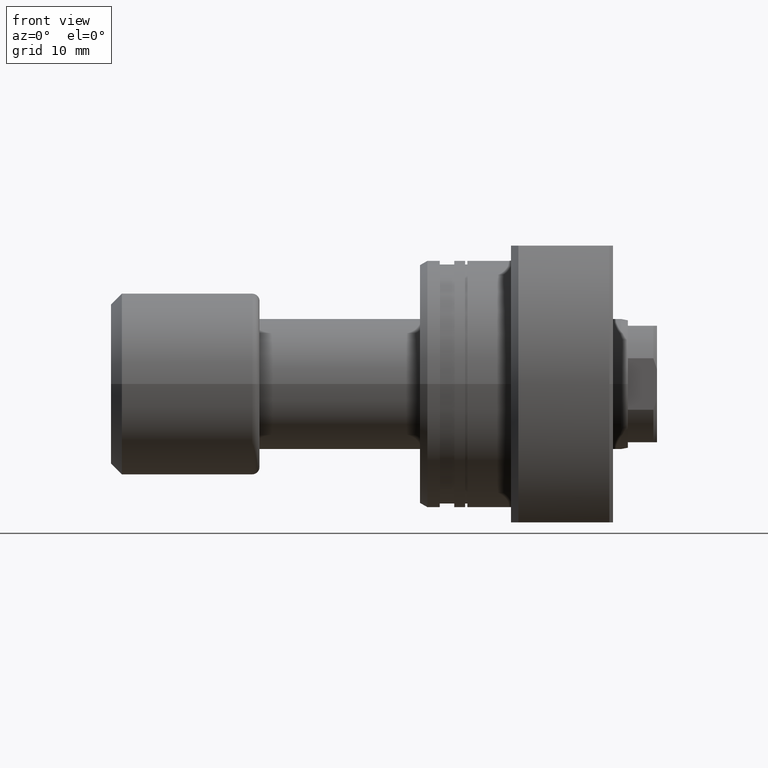
[diagram: clean part render]
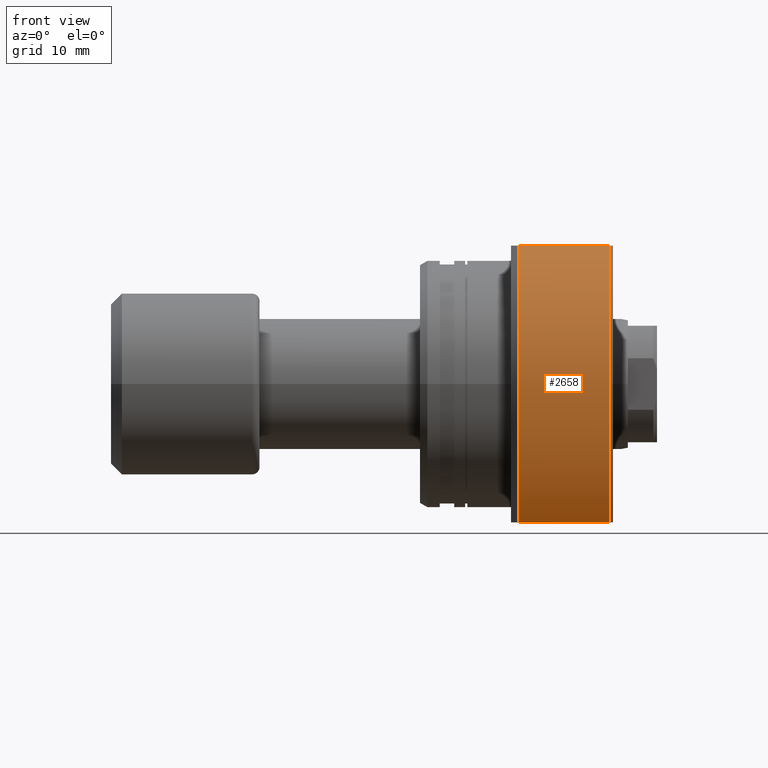
[diagram: same view with one face highlighted and labeled with its STEP entity id]
A machine part, front view. The second image highlights one B-rep face of the part: STEP entity #2658.
In plain terms, the highlighted cylindrical surface (partial cylindrical patch) has radius 27.5 mm, axis along (1, 0, 0).
Its self-contained STEP definition (entity closure, byte-faithful):
#4 = VERTEX_POINT ( 'NONE', #5 ) ;
#5 = CARTESIAN_POINT ( 'NONE',  ( 26.00000000000007461, -19.88089535207091885, 19.00000000000001421 ) ) ;
#87 = DIRECTION ( 'NONE',  ( 1.000000000000000000, 9.242617352055502386E-18, -0.000000000000000000 ) ) ;
#132 = CARTESIAN_POINT ( 'NONE',  ( 26.00000000000007461, -19.88089535207092240, -19.00000000000001066 ) ) ;
#270 = ORIENTED_EDGE ( 'NONE', *, *, #2623, .F. ) ;
#332 = CIRCLE ( 'NONE', #2168, 27.49999999999991473 ) ;
#341 = ORIENTED_EDGE ( 'NONE', *, *, #2199, .T. ) ;
#354 = DIRECTION ( 'NONE',  ( 0.000000000000000000, 1.000000000000000000, 0.000000000000000000 ) ) ;
#462 = LINE ( 'NONE', #1450, #3205 ) ;
#490 = VERTEX_POINT ( 'NONE', #132 ) ;
#586 = FACE_OUTER_BOUND ( 'NONE', #3076, .T. ) ;
#598 = ORIENTED_EDGE ( 'NONE', *, *, #3119, .T. ) ;
#621 = DIRECTION ( 'NONE',  ( 1.000000000000000000, 9.242617352055502386E-18, -0.000000000000000000 ) ) ;
#713 = DIRECTION ( 'NONE',  ( 1.000000000000000000, -2.886466111666351885E-14, -0.000000000000000000 ) ) ;
#811 = AXIS2_PLACEMENT_3D ( 'NONE', #2131, #621, #354 ) ;
#892 = CARTESIAN_POINT ( 'NONE',  ( 26.50000000000000711, 2.449293598294708880E-16, 0.000000000000000000 ) ) ;
#984 = VECTOR ( 'NONE', #3055, 1000.000000000000000 ) ;
#1017 = ORIENTED_EDGE ( 'NONE', *, *, #1955, .F. ) ;
#1177 = VERTEX_POINT ( 'NONE', #1188 ) ;
#1188 = CARTESIAN_POINT ( 'NONE',  ( 13.49999999999998757, -19.88089535207056002, 19.00000000000001421 ) ) ;
#1360 = DIRECTION ( 'NONE',  ( 1.000000000000000000, 9.242617352055502386E-18, -0.000000000000000000 ) ) ;
#1450 = CARTESIAN_POINT ( 'NONE',  ( -1.360023205165816762E-12, -19.88089535207016922, 19.00000000000001421 ) ) ;
#1761 = VERTEX_POINT ( 'NONE', #2397 ) ;
#1900 = DIRECTION ( 'NONE',  ( 1.000000000000000000, 9.242617352055502386E-18, -0.000000000000000000 ) ) ;
#1914 = AXIS2_PLACEMENT_3D ( 'NONE', #892, #1900, #2882 ) ;
#1955 = EDGE_CURVE ( 'NONE', #1177, #4, #462, .T. ) ;
#2109 = EDGE_CURVE ( 'NONE', #1761, #490, #332, .T. ) ;
#2131 = CARTESIAN_POINT ( 'NONE',  ( 26.00000000000008882, 2.403080511534438786E-16, 0.000000000000000000 ) ) ;
#2168 = AXIS2_PLACEMENT_3D ( 'NONE', #2290, #87, #2994 ) ;
#2170 = CIRCLE ( 'NONE', #811, 27.49999999999991473 ) ;
#2199 = EDGE_CURVE ( 'NONE', #1177, #2357, #2322, .T. ) ;
#2290 = CARTESIAN_POINT ( 'NONE',  ( 26.00000000000008882, 2.403080511534438786E-16, 0.000000000000000000 ) ) ;
#2316 = LINE ( 'NONE', #3069, #984 ) ;
#2322 = CIRCLE ( 'NONE', #2834, 27.49999999999991473 ) ;
#2357 = VERTEX_POINT ( 'NONE', #2417 ) ;
#2384 = DIRECTION ( 'NONE',  ( 0.000000000000000000, 1.000000000000000000, 0.000000000000000000 ) ) ;
#2397 = CARTESIAN_POINT ( 'NONE',  ( 26.00000000000008882, -27.49999999999991473, 0.000000000000000000 ) ) ;
#2417 = CARTESIAN_POINT ( 'NONE',  ( 13.49999999999998757, -19.88089535207056358, -19.00000000000001066 ) ) ;
#2483 = ORIENTED_EDGE ( 'NONE', *, *, #2109, .F. ) ;
#2585 = CARTESIAN_POINT ( 'NONE',  ( 13.49999999999999112, 1.247753342527491952E-16, 0.000000000000000000 ) ) ;
#2623 = EDGE_CURVE ( 'NONE', #4, #1761, #2170, .T. ) ;
#2658 = ADVANCED_FACE ( 'NONE', ( #586 ), #3137, .T. ) ;
#2834 = AXIS2_PLACEMENT_3D ( 'NONE', #2585, #1360, #2384 ) ;
#2882 = DIRECTION ( 'NONE',  ( 0.000000000000000000, 1.000000000000000000, 0.000000000000000000 ) ) ;
#2994 = DIRECTION ( 'NONE',  ( 0.000000000000000000, 1.000000000000000000, 0.000000000000000000 ) ) ;
#3055 = DIRECTION ( 'NONE',  ( 1.000000000000000000, -2.886466111666351885E-14, -0.000000000000000000 ) ) ;
#3069 = CARTESIAN_POINT ( 'NONE',  ( -1.360023205165816762E-12, -19.88089535207017278, -19.00000000000001066 ) ) ;
#3076 = EDGE_LOOP ( 'NONE', ( #1017, #341, #598, #2483, #270 ) ) ;
#3119 = EDGE_CURVE ( 'NONE', #2357, #490, #2316, .T. ) ;
#3137 = CYLINDRICAL_SURFACE ( 'NONE', #1914, 27.49999999999991473 ) ;
#3205 = VECTOR ( 'NONE', #713, 1000.000000000000000 ) ;